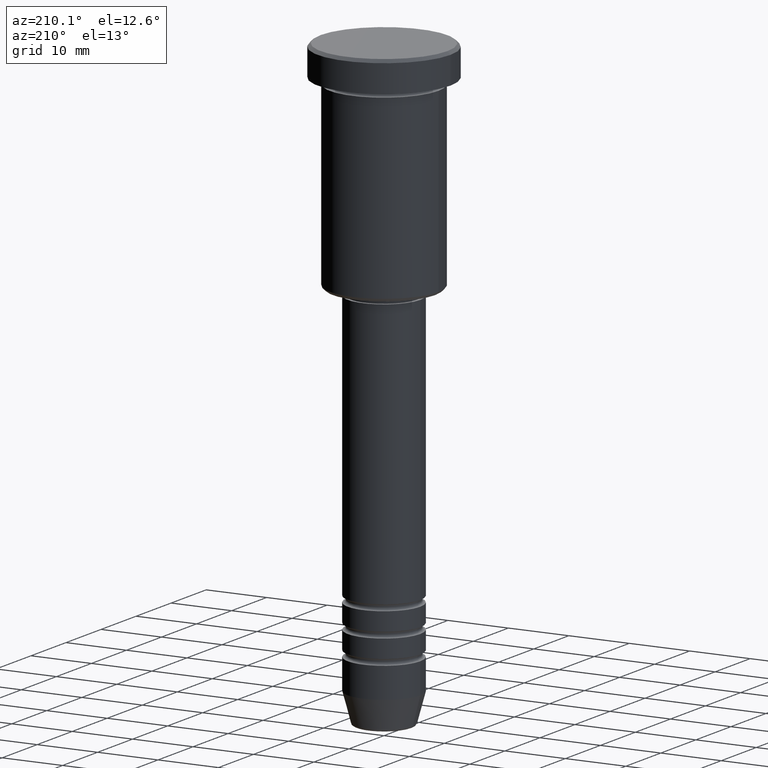
[diagram: clean part render]
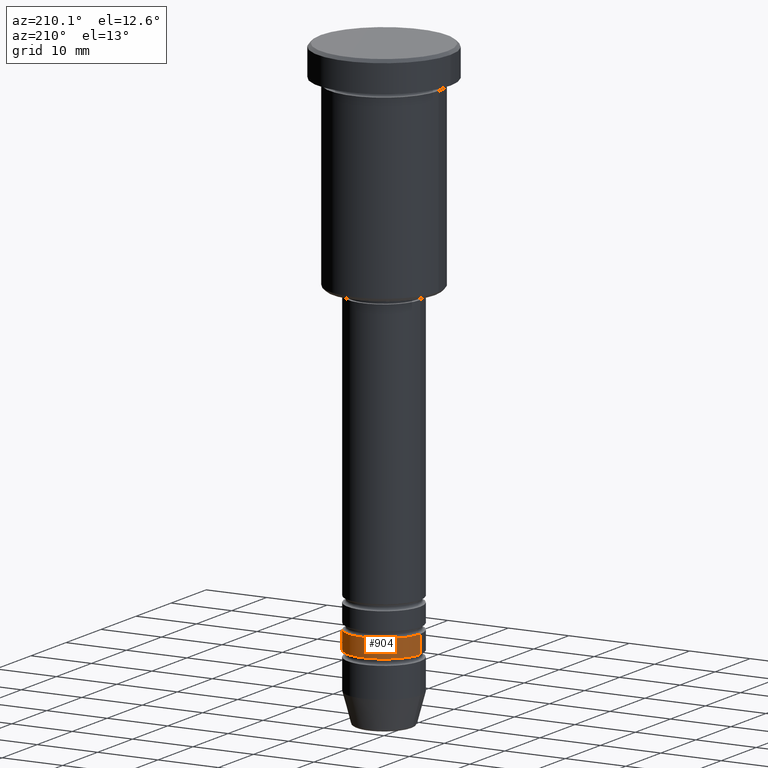
[diagram: same view with one face highlighted and labeled with its STEP entity id]
A machine part, auxiliary view. The second image highlights one B-rep face of the part: STEP entity #904.
In plain terms, the highlighted cylindrical surface (partial cylindrical patch) has radius 6 mm, axis along (-0, -0, 1).
Its self-contained STEP definition (entity closure, byte-faithful):
#63 = CARTESIAN_POINT ( 'NONE',  ( -6.000000000000000000, 7.347880794884119736E-16, 0.000000000000000000 ) ) ;
#75 = LINE ( 'NONE', #811, #1105 ) ;
#93 = VERTEX_POINT ( 'NONE', #730 ) ;
#100 = CARTESIAN_POINT ( 'NONE',  ( 0.000000000000000000, 0.000000000000000000, -86.00000000000000000 ) ) ;
#107 = ORIENTED_EDGE ( 'NONE', *, *, #1161, .T. ) ;
#123 = DIRECTION ( 'NONE',  ( 1.000000000000000000, 0.000000000000000000, 0.000000000000000000 ) ) ;
#125 = DIRECTION ( 'NONE',  ( -0.000000000000000000, -0.000000000000000000, 1.000000000000000000 ) ) ;
#146 = DIRECTION ( 'NONE',  ( -0.000000000000000000, -0.000000000000000000, 1.000000000000000000 ) ) ;
#210 = FACE_OUTER_BOUND ( 'NONE', #234, .T. ) ;
#219 = VERTEX_POINT ( 'NONE', #314 ) ;
#234 = EDGE_LOOP ( 'NONE', ( #107, #619, #383, #651 ) ) ;
#263 = AXIS2_PLACEMENT_3D ( 'NONE', #295, #125, #1030 ) ;
#295 = CARTESIAN_POINT ( 'NONE',  ( 0.000000000000000000, 0.000000000000000000, -88.99999999999998579 ) ) ;
#306 = AXIS2_PLACEMENT_3D ( 'NONE', #100, #373, #557 ) ;
#314 = CARTESIAN_POINT ( 'NONE',  ( 5.999999999999999112, 0.000000000000000000, -86.00000000000000000 ) ) ;
#373 = DIRECTION ( 'NONE',  ( -0.000000000000000000, -0.000000000000000000, 1.000000000000000000 ) ) ;
#383 = ORIENTED_EDGE ( 'NONE', *, *, #780, .F. ) ;
#443 = CARTESIAN_POINT ( 'NONE',  ( 6.000000000000000000, 0.000000000000000000, -88.99999999999998579 ) ) ;
#474 = DIRECTION ( 'NONE',  ( -0.000000000000000000, -0.000000000000000000, 1.000000000000000000 ) ) ;
#557 = DIRECTION ( 'NONE',  ( 1.000000000000000000, 0.000000000000000000, 0.000000000000000000 ) ) ;
#609 = EDGE_CURVE ( 'NONE', #1181, #93, #973, .T. ) ;
#619 = ORIENTED_EDGE ( 'NONE', *, *, #609, .T. ) ;
#627 = CIRCLE ( 'NONE', #263, 6.000000000000000000 ) ;
#651 = ORIENTED_EDGE ( 'NONE', *, *, #1049, .F. ) ;
#730 = CARTESIAN_POINT ( 'NONE',  ( -5.999999999999999112, 7.347880794884118750E-16, -86.00000000000000000 ) ) ;
#780 = EDGE_CURVE ( 'NONE', #219, #93, #819, .T. ) ;
#811 = CARTESIAN_POINT ( 'NONE',  ( 6.000000000000000000, 0.000000000000000000, 0.000000000000000000 ) ) ;
#819 = CIRCLE ( 'NONE', #306, 5.999999999999999112 ) ;
#864 = VECTOR ( 'NONE', #146, 1000.000000000000000 ) ;
#865 = AXIS2_PLACEMENT_3D ( 'NONE', #1007, #474, #123 ) ;
#904 = ADVANCED_FACE ( 'NONE', ( #210 ), #1121, .T. ) ;
#973 = LINE ( 'NONE', #63, #864 ) ;
#1002 = DIRECTION ( 'NONE',  ( -0.000000000000000000, -0.000000000000000000, 1.000000000000000000 ) ) ;
#1007 = CARTESIAN_POINT ( 'NONE',  ( 0.000000000000000000, 0.000000000000000000, 0.000000000000000000 ) ) ;
#1009 = CARTESIAN_POINT ( 'NONE',  ( -6.000000000000000000, 7.347880794884119736E-16, -88.99999999999998579 ) ) ;
#1030 = DIRECTION ( 'NONE',  ( 1.000000000000000000, 0.000000000000000000, 0.000000000000000000 ) ) ;
#1049 = EDGE_CURVE ( 'NONE', #1059, #219, #75, .T. ) ;
#1059 = VERTEX_POINT ( 'NONE', #443 ) ;
#1105 = VECTOR ( 'NONE', #1002, 1000.000000000000000 ) ;
#1121 = CYLINDRICAL_SURFACE ( 'NONE', #865, 6.000000000000000000 ) ;
#1161 = EDGE_CURVE ( 'NONE', #1059, #1181, #627, .T. ) ;
#1181 = VERTEX_POINT ( 'NONE', #1009 ) ;